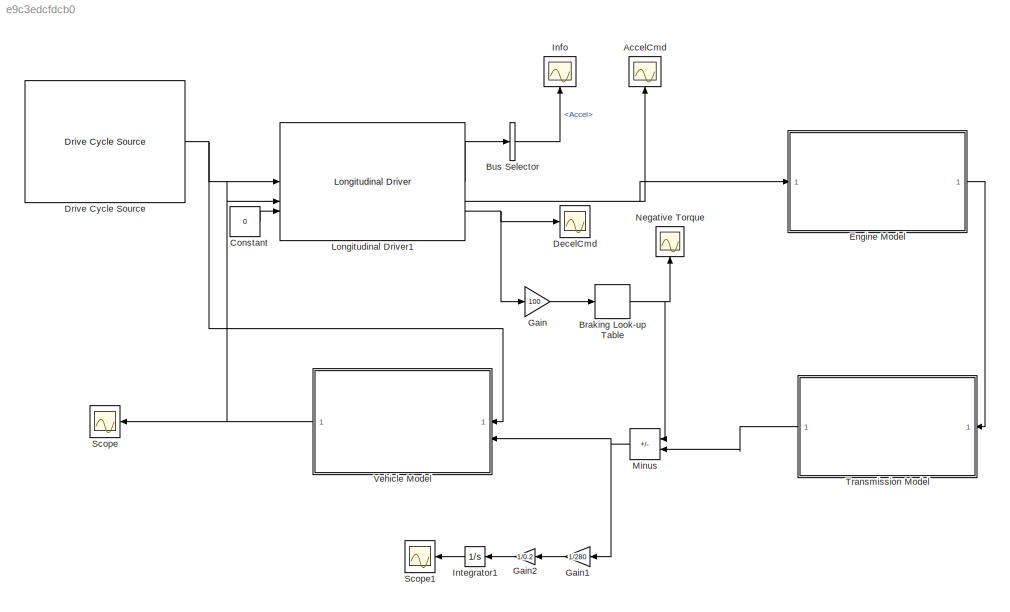
MODEL slx_e9c3edcfdcb0
KIND model
CONFIG AbsTol = auto
CONFIG EnableMultiTasking = off
CONFIG FixedStep = auto
CONFIG MaxStep = auto
CONFIG MinStep = auto
CONFIG RelTol = 1e-3
CONFIG SampleTimeConstraint = Unconstrained
CONFIG SolverName = VariableStepAuto
CONFIG StartTime = 0.0
CONFIG StopTime = 2474
WORKSPACE source: MATLAB code (in-file)
WORKSPACE x = linspace(0,230.4,100)
WORKSPACE m = 280
BLOCK [Scope] AccelCmd
  Floating = off
  NameLocation = right
  NumInputPorts = 1
  ScopeSpecificationString = Simulink.scopes.TimeScopeBlockCfg('CurrentConfiguration', extmgr.ConfigurationSet(extmgr.Configuration('Core','General UI',true),extmgr.Configuration('Core','Source UI',true),extmgr.Configuration('Sources','WiredSimulink',true,'DataLoggingVariableName','ScopeData2'),extmgr.Configuration('Visuals','Time Domain',true,'SerializedDisplays',{struct('MinYLimReal','-0.01818','MaxYLimReal','0.16366','YLab...<+1474ch>
BLOCK [Lookup_n-D] Braking Look-up Table
  BreakpointsForDimension1 = 1:100
  InputPortMap = u0
  InternalRulePriority = Speed
  NumberOfTableDimensions = 1
  RndMeth = Simplest
  Table = x
BLOCK [BusSelector] Bus Selector
  OutputSignals = Accel
BLOCK [Constant] Constant
  Value = 0
BLOCK [Scope] DecelCmd
  Floating = off
  NumInputPorts = 1
  ScopeSpecificationString = Simulink.scopes.TimeScopeBlockCfg('CurrentConfiguration', extmgr.ConfigurationSet(extmgr.Configuration('Core','General UI',true),extmgr.Configuration('Core','Source UI',true),extmgr.Configuration('Sources','WiredSimulink',true,'DataLoggingVariableName','ScopeData1'),extmgr.Configuration('Visuals','Time Domain',true,'SerializedDisplays',{struct('MinYLimReal','-0.0421','MaxYLimReal','0.3789','YLabel...<+1468ch>
BLOCK [Reference] Drive Cycle Source  REF=autolibshared/Drive Cycle Source
  AttributesFormatString = %<cycleVar> (%<tfinal>)
  LibrarySourceBlock = autolibscenario/Drive Cycle Source
  SourceBlock = autolibshared/Drive Cycle Source
  SourceType = Drive Cycle Source
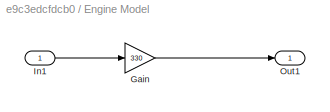
BLOCK [SubSystem] Engine Model
BLOCK [Gain] Engine Model/Gain
  Gain = 330
BLOCK [Inport] Engine Model/In1
BLOCK [Outport] Engine Model/Out1
BLOCK [Gain] Gain
  Gain = 100
BLOCK [Gain] Gain1
  Gain = 1/280
  NameLocation = top
BLOCK [Gain] Gain2
  Gain = 1/0.2
  NameLocation = top
BLOCK [Scope] Info
  Floating = off
  NameLocation = right
  NumInputPorts = 1
  ScopeSpecificationString = Simulink.scopes.TimeScopeBlockCfg('CurrentConfiguration', extmgr.ConfigurationSet(extmgr.Configuration('Core','General UI',true),extmgr.Configuration('Core','Source UI',true),extmgr.Configuration('Sources','WiredSimulink',true),extmgr.Configuration('Visuals','Time Domain',true,'SerializedDisplays',{struct('MinYLimReal','-0.01818','MaxYLimReal','0.16366','YLabelReal','','MinYLimMag','0.00000','MaxY...<+1416ch>
BLOCK [Integrator] Integrator1
  NameLocation = top
BLOCK [Reference] Longitudinal Driver1  REF=autolibshared/Longitudinal Driver
  LibrarySourceBlock = vehdynlibdriver/Longitudinal Driver
  SourceBlock = autolibshared/Longitudinal Driver
  SourceType = Longitudinal Driver
BLOCK [Sum] Minus
  IconShape = rectangular
  Inputs = -+
  NameLocation = top
BLOCK [Scope] Negative Torque
  Floating = off
  NameLocation = right
  NumInputPorts = 1
  ScopeSpecificationString = Simulink.scopes.TimeScopeBlockCfg('CurrentConfiguration', extmgr.ConfigurationSet(extmgr.Configuration('Core','General UI',true),extmgr.Configuration('Core','Source UI',true),extmgr.Configuration('Sources','WiredSimulink',true,'DataLoggingVariableName','ScopeData2'),extmgr.Configuration('Visuals','Time Domain',true,'SerializedDisplays',{struct('MinYLimReal','-12.12502','MaxYLimReal','85.85248','YL...<+1475ch>
BLOCK [Scope] Scope
  Floating = off
  NameLocation = top
  NumInputPorts = 1
  ScopeSpecificationString = Simulink.scopes.TimeScopeBlockCfg('CurrentConfiguration', extmgr.ConfigurationSet(extmgr.Configuration('Core','General UI',true),extmgr.Configuration('Core','Source UI',true),extmgr.Configuration('Sources','WiredSimulink',true,'DataLoggingVariableName','ScopeData1'),extmgr.Configuration('Visuals','Time Domain',true,'SerializedDisplays',{struct('MinYLimReal','-3.17224','MaxYLimReal','28.52497','YLa...<+1498ch>
BLOCK [Scope] Scope1
  Floating = off
  NameLocation = top
  NumInputPorts = 1
  ScopeSpecificationString = Simulink.scopes.TimeScopeBlockCfg('CurrentConfiguration', extmgr.ConfigurationSet(extmgr.Configuration('Core','General UI',true),extmgr.Configuration('Core','Source UI',true),extmgr.Configuration('Sources','WiredSimulink',true,'DataLoggingVariableName','ScopeData2'),extmgr.Configuration('Visuals','Time Domain',true,'SerializedDisplays',{struct('MinYLimReal','-155.85914','MaxYLimReal','1402.73224',...<+1477ch>
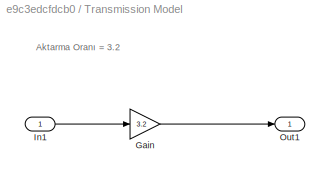
BLOCK [SubSystem] Transmission Model
  NameLocation = top
BLOCK [Gain] Transmission Model/Gain
  Gain = 3.2
BLOCK [Inport] Transmission Model/In1
BLOCK [Outport] Transmission Model/Out1
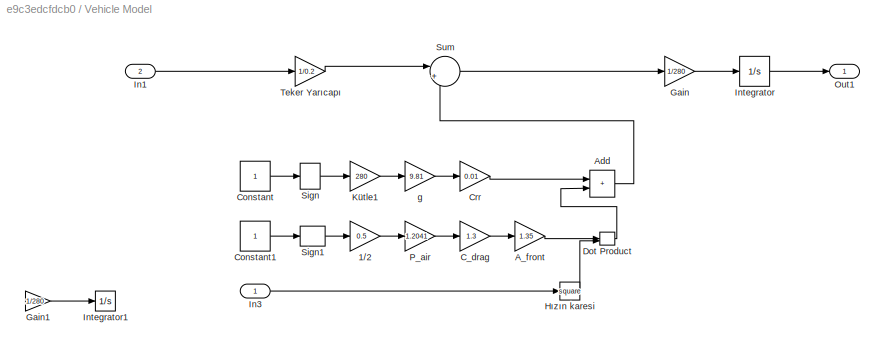
BLOCK [SubSystem] Vehicle Model
  NameLocation = top
BLOCK [Gain] Vehicle Model/1//2
  Gain = 0.5
BLOCK [Gain] Vehicle Model/A_front
  Gain = 1.35
BLOCK [Sum] Vehicle Model/Add
  IconShape = rectangular
BLOCK [Gain] Vehicle Model/C_drag
  Gain = 1.3
BLOCK [Constant] Vehicle Model/Constant
BLOCK [Constant] Vehicle Model/Constant1
BLOCK [Gain] Vehicle Model/Crr
  Gain = 0.01
BLOCK [DotProduct] Vehicle Model/Dot Product
  OutDataTypeStr = Inherit: Inherit via internal rule
BLOCK [Gain] Vehicle Model/Gain
  Gain = 1/280
BLOCK [Gain] Vehicle Model/Gain1
  Gain = 1/280
BLOCK [Math] Vehicle Model/Hızın karesi
  Operator = square
BLOCK [Inport] Vehicle Model/In1
  Port = 2
BLOCK [Inport] Vehicle Model/In3
BLOCK [Integrator] Vehicle Model/Integrator
BLOCK [Integrator] Vehicle Model/Integrator1
BLOCK [Gain] Vehicle Model/Kütle1
  Gain = 280
BLOCK [Outport] Vehicle Model/Out1
BLOCK [Gain] Vehicle Model/P_air
  Gain = 1.2041
BLOCK [Signum] Vehicle Model/Sign
BLOCK [Signum] Vehicle Model/Sign1
BLOCK [Sum] Vehicle Model/Sum
  Inputs = |+-
BLOCK [Gain] Vehicle Model/Teker Yarıcapı
  Gain = 1/0.2
BLOCK [Gain] Vehicle Model/g
  Gain = 9.81
ANNOTATION Transmission Model: Aktarma Oranı = 3.2
NET Braking Look-up Table:1 -> Minus:1, Negative Torque:1
LINE Bus Selector:1 -> Info:1
LINE Constant:1 -> Longitudinal Driver1:3
NET Drive Cycle Source:1 -> Longitudinal Driver1:1, Vehicle Model:1
LINE Engine Model/Gain:1 -> Engine Model/Out1:1
LINE Engine Model/In1:1 -> Engine Model/Gain:1
LINE Engine Model:1 -> Transmission Model:1
LINE Gain1:1 -> Gain2:1
LINE Gain2:1 -> Integrator1:1
LINE Gain:1 -> Braking Look-up Table:1
LINE Integrator1:1 -> Scope1:1
LINE Longitudinal Driver1:1 -> Bus Selector:1
NET Longitudinal Driver1:2 -> AccelCmd:1, Engine Model:1
NET Longitudinal Driver1:3 -> DecelCmd:1, Gain:1
NET Minus:1 -> Gain1:1, Vehicle Model:2
LINE Transmission Model/Gain:1 -> Transmission Model/Out1:1
LINE Transmission Model/In1:1 -> Transmission Model/Gain:1
LINE Transmission Model:1 -> Minus:2
LINE Vehicle Model/1//2:1 -> Vehicle Model/P_air:1
LINE Vehicle Model/A_front:1 -> Vehicle Model/Dot Product:1
LINE Vehicle Model/Add:1 -> Vehicle Model/Sum:2
LINE Vehicle Model/C_drag:1 -> Vehicle Model/A_front:1
LINE Vehicle Model/Constant1:1 -> Vehicle Model/Sign1:1
LINE Vehicle Model/Constant:1 -> Vehicle Model/Sign:1
LINE Vehicle Model/Crr:1 -> Vehicle Model/Add:1
LINE Vehicle Model/Dot Product:1 -> Vehicle Model/Add:2
LINE Vehicle Model/Gain1:1 -> Vehicle Model/Integrator1:1
LINE Vehicle Model/Gain:1 -> Vehicle Model/Integrator:1
LINE Vehicle Model/Hızın karesi:1 -> Vehicle Model/Dot Product:2
LINE Vehicle Model/In1:1 -> Vehicle Model/Teker Yarıcapı:1
LINE Vehicle Model/In3:1 -> Vehicle Model/Hızın karesi:1
LINE Vehicle Model/Integrator:1 -> Vehicle Model/Out1:1
LINE Vehicle Model/Kütle1:1 -> Vehicle Model/g:1
LINE Vehicle Model/P_air:1 -> Vehicle Model/C_drag:1
LINE Vehicle Model/Sign1:1 -> Vehicle Model/1//2:1
LINE Vehicle Model/Sign:1 -> Vehicle Model/Kütle1:1
LINE Vehicle Model/Sum:1 -> Vehicle Model/Gain:1
LINE Vehicle Model/Teker Yarıcapı:1 -> Vehicle Model/Sum:1
LINE Vehicle Model/g:1 -> Vehicle Model/Crr:1
NET Vehicle Model:1 -> Longitudinal Driver1:2, Scope:1
note: NET lines group one-source signal fan-out (src -> all destinations, sorted); 1:1 wires keep LINE
